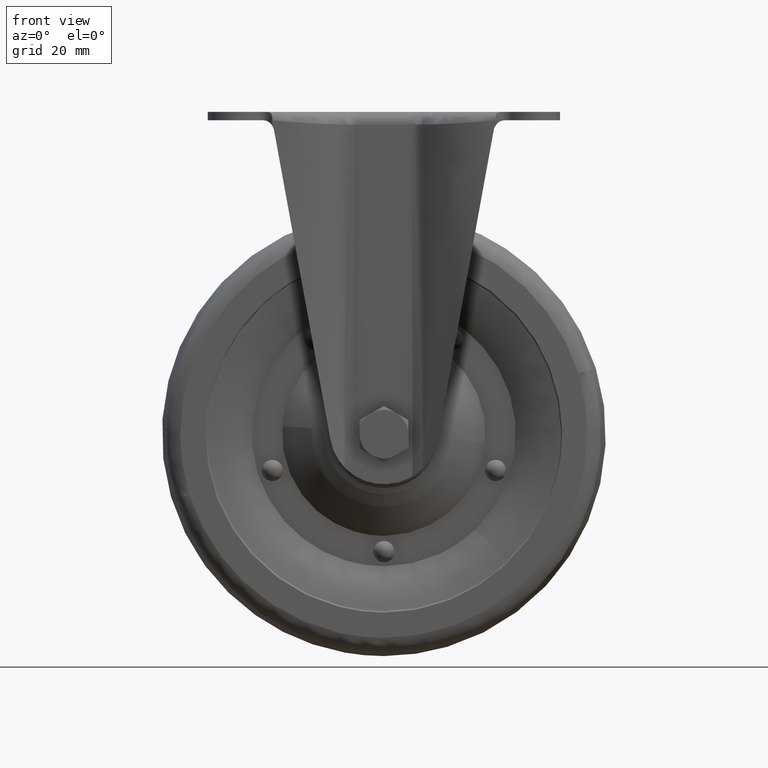
[diagram: clean part render]
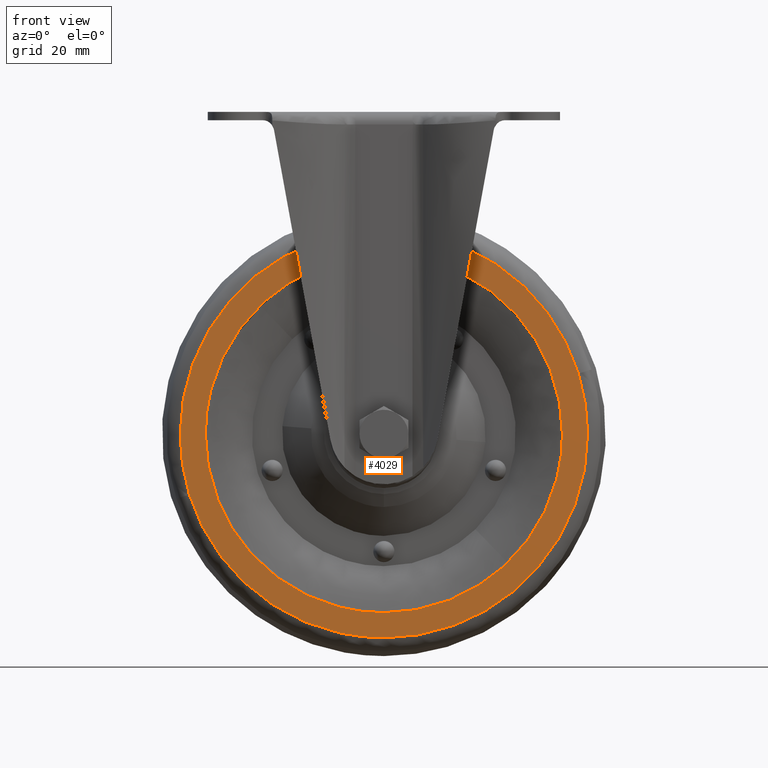
[diagram: same view with one face highlighted and labeled with its STEP entity id]
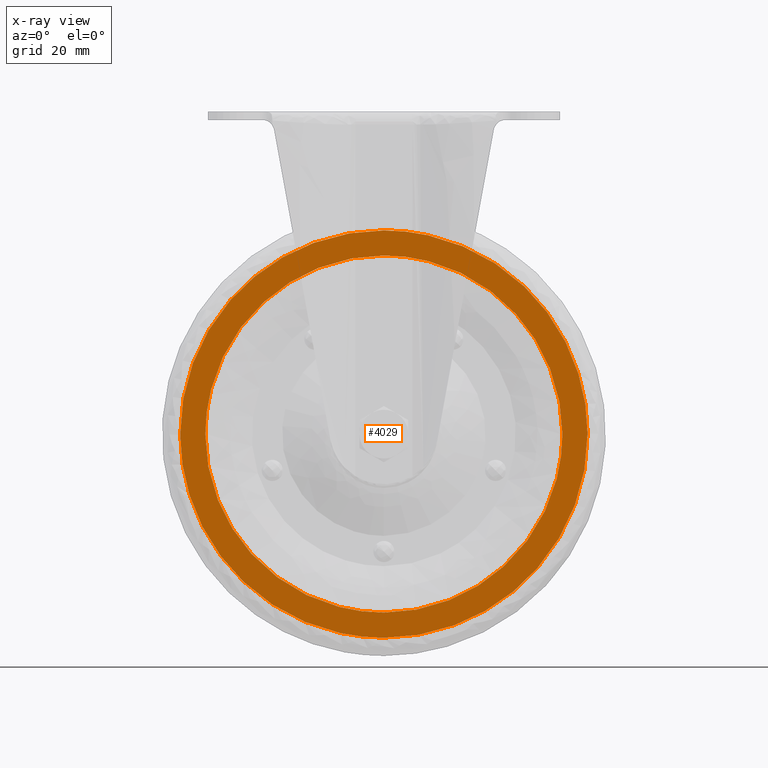
[diagram: x-ray of the same camera — body ghosted, the highlighted face saturated]
A machine part, front view. The second image highlights one B-rep face of the part: STEP entity #4029.
The next image is the same camera in x-ray: the body ghosted, the highlighted face saturated — about 0% of this face is hidden behind the body in this view.
In plain terms, the highlighted face is a freeform B-spline surface patch.
Its self-contained STEP definition (entity closure, byte-faithful):
#3826=CARTESIAN_POINT('',(67.908224761148844,-14.0,-91.374944518039996));
#3827=VERTEX_POINT('',#3826);
#3841=CARTESIAN_POINT('',(0.0,-14.0,-183.618176000000010));
#3842=VERTEX_POINT('',#3841);
#3843=CARTESIAN_POINT('',(0.0,-14.0,-183.618176000000010));
#3844=CARTESIAN_POINT('',(71.118176004348200,-13.999999999999998,-183.618175998647360));
#3845=CARTESIAN_POINT('',(71.118176010254558,-14.0,-112.499999996810000));
#3846=CARTESIAN_POINT('',(71.118176011152016,-14.000000000000004,-101.693596281719620));
#3847=CARTESIAN_POINT('',(67.908224761148844,-13.999999999999993,-91.374944518039996));
#3855=(BOUNDED_CURVE()B_SPLINE_CURVE(2,(#3843,#3844,#3845,#3846,#3847),.UNSPECIFIED.,.F.,.U.)B_SPLINE_CURVE_WITH_KNOTS((3,2,3),(0.0,0.250000000000000,0.300541362319608),.UNSPECIFIED.)CURVE()GEOMETRIC_REPRESENTATION_ITEM()RATIONAL_B_SPLINE_CURVE((1.0,0.707106781186547,1.0,0.940787110827972,0.905515822341018))REPRESENTATION_ITEM(''));
#3856=EDGE_CURVE('',#3842,#3827,#3855,.T.);
#3858=CARTESIAN_POINT('',(-67.908224761148858,-14.0,-133.625055481960000));
#3859=VERTEX_POINT('',#3858);
#3860=CARTESIAN_POINT('',(-67.908224761148844,-13.999999999999993,-133.625055481960000));
#3861=CARTESIAN_POINT('',(-52.356243409063232,-13.999999999999991,-183.618176001837380));
#3862=CARTESIAN_POINT('',(0.0,-14.0,-183.618176000000010));
#3870=(BOUNDED_CURVE()B_SPLINE_CURVE(2,(#3860,#3861,#3862),.UNSPECIFIED.,.F.,.U.)B_SPLINE_CURVE_WITH_KNOTS((3,3),(0.800541362319608,1.0),.UNSPECIFIED.)CURVE()GEOMETRIC_REPRESENTATION_ITEM()RATIONAL_B_SPLINE_CURVE((0.905515822341018,0.766319670358575,1.0))REPRESENTATION_ITEM(''));
#3871=EDGE_CURVE('',#3859,#3842,#3870,.T.);
#3921=CARTESIAN_POINT('',(0.0,-14.0,-41.381824000000002));
#3922=VERTEX_POINT('',#3921);
#3923=CARTESIAN_POINT('',(0.0,-14.0,-41.381824000000002));
#3924=CARTESIAN_POINT('',(-71.118176004348186,-13.999999999999996,-41.381824001352626));
#3925=CARTESIAN_POINT('',(-71.118176010254544,-14.0,-112.500000003190000));
#3926=CARTESIAN_POINT('',(-71.118176011152016,-13.999999999999991,-123.306403718280360));
#3927=CARTESIAN_POINT('',(-67.908224761148844,-13.999999999999993,-133.625055481960000));
#3935=(BOUNDED_CURVE()B_SPLINE_CURVE(2,(#3923,#3924,#3925,#3926,#3927),.UNSPECIFIED.,.F.,.U.)B_SPLINE_CURVE_WITH_KNOTS((3,2,3),(0.500000000000000,0.750000000000000,0.800541362319608),.UNSPECIFIED.)CURVE()GEOMETRIC_REPRESENTATION_ITEM()RATIONAL_B_SPLINE_CURVE((1.0,0.707106781186547,1.0,0.940787110827972,0.905515822341018))REPRESENTATION_ITEM(''));
#3936=EDGE_CURVE('',#3922,#3859,#3935,.T.);
#3938=CARTESIAN_POINT('',(67.908224761148844,-13.999999999999993,-91.374944518039996));
#3939=CARTESIAN_POINT('',(52.356243409063197,-14.000000000000004,-41.381823998162638));
#3940=CARTESIAN_POINT('',(0.0,-14.0,-41.381824000000002));
#3948=(BOUNDED_CURVE()B_SPLINE_CURVE(2,(#3938,#3939,#3940),.UNSPECIFIED.,.F.,.U.)B_SPLINE_CURVE_WITH_KNOTS((3,3),(0.300541362319608,0.500000000000000),.UNSPECIFIED.)CURVE()GEOMETRIC_REPRESENTATION_ITEM()RATIONAL_B_SPLINE_CURVE((0.905515822341018,0.766319670358576,1.0))REPRESENTATION_ITEM(''));
#3949=EDGE_CURVE('',#3827,#3922,#3948,.T.);
#3956=CARTESIAN_POINT('',(-78.218594760863169,-14.0,-34.277118493281641));
#3957=CARTESIAN_POINT('',(-78.218594760863169,-14.0,-190.722885321794710));
#3958=CARTESIAN_POINT('',(78.218589675188284,-14.0,-34.277118493281641));
#3959=CARTESIAN_POINT('',(78.218589675188284,-14.0,-190.722885321794710));
#3960=B_SPLINE_SURFACE_WITH_KNOTS('',1,1,((#3956,#3958),(#3957,#3959)),.UNSPECIFIED.,.F.,.F.,.U.,(2,2),(2,2),(0.0,156.445766828513000),(0.0,156.437184436051410),.UNSPECIFIED.);
#3961=ORIENTED_EDGE('',*,*,#3856,.T.);
#3962=ORIENTED_EDGE('',*,*,#3949,.T.);
#3963=ORIENTED_EDGE('',*,*,#3936,.T.);
#3964=ORIENTED_EDGE('',*,*,#3871,.T.);
#3965=EDGE_LOOP('',(#3961,#3962,#3963,#3964));
#3966=FACE_OUTER_BOUND('',#3965,.T.);
#3967=CARTESIAN_POINT('',(0.0,-14.0,-50.149999999999999));
#3968=VERTEX_POINT('',#3967);
#3969=CARTESIAN_POINT('',(-62.349999987765742,-14.0,-112.500000000000000));
#3970=VERTEX_POINT('',#3969);
#3971=CARTESIAN_POINT('',(0.0,-14.0,-50.149999999999999));
#3972=CARTESIAN_POINT('',(-62.349999993882861,-13.999999999999998,-50.150000000000013));
#3973=CARTESIAN_POINT('',(-62.349999987765742,-14.0,-112.500000000000000));
#3981=(BOUNDED_CURVE()B_SPLINE_CURVE(2,(#3971,#3972,#3973),.UNSPECIFIED.,.F.,.U.)B_SPLINE_CURVE_WITH_KNOTS((3,3),(0.500000000000000,0.750000000000000),.UNSPECIFIED.)CURVE()GEOMETRIC_REPRESENTATION_ITEM()RATIONAL_B_SPLINE_CURVE((1.0,0.707106781186548,1.0))REPRESENTATION_ITEM(''));
#3982=EDGE_CURVE('',#3968,#3970,#3981,.T.);
#3983=ORIENTED_EDGE('',*,*,#3982,.F.);
#3984=CARTESIAN_POINT('',(62.349999987765742,-14.0,-112.500000000000000));
#3985=VERTEX_POINT('',#3984);
#3986=CARTESIAN_POINT('',(62.349999987765742,-14.000000000000004,-112.500000000000030));
#3987=CARTESIAN_POINT('',(62.349999993882868,-13.999999999999998,-50.149999999999991));
#3988=CARTESIAN_POINT('',(0.0,-14.0,-50.149999999999999));
#3996=(BOUNDED_CURVE()B_SPLINE_CURVE(2,(#3986,#3987,#3988),.UNSPECIFIED.,.F.,.U.)B_SPLINE_CURVE_WITH_KNOTS((3,3),(0.250000000000000,0.500000000000000),.UNSPECIFIED.)CURVE()GEOMETRIC_REPRESENTATION_ITEM()RATIONAL_B_SPLINE_CURVE((1.000000000000000,0.707106781186547,1.0))REPRESENTATION_ITEM(''));
#3997=EDGE_CURVE('',#3985,#3968,#3996,.T.);
#3998=ORIENTED_EDGE('',*,*,#3997,.F.);
#3999=CARTESIAN_POINT('',(0.0,-14.0,-174.849999999999990));
#4000=VERTEX_POINT('',#3999);
#4001=CARTESIAN_POINT('',(0.0,-14.0,-174.849999999999990));
#4002=CARTESIAN_POINT('',(62.349999993882854,-13.999999999999998,-174.849999999999940));
#4003=CARTESIAN_POINT('',(62.349999987765742,-14.0,-112.500000000000000));
#4011=(BOUNDED_CURVE()B_SPLINE_CURVE(2,(#4001,#4002,#4003),.UNSPECIFIED.,.F.,.U.)B_SPLINE_CURVE_WITH_KNOTS((3,3),(0.0,0.250000000000000),.UNSPECIFIED.)CURVE()GEOMETRIC_REPRESENTATION_ITEM()RATIONAL_B_SPLINE_CURVE((1.0,0.707106781186548,1.0))REPRESENTATION_ITEM(''));
#4012=EDGE_CURVE('',#4000,#3985,#4011,.T.);
#4013=ORIENTED_EDGE('',*,*,#4012,.F.);
#4014=CARTESIAN_POINT('',(-62.349999987765742,-14.0,-112.500000000000000));
#4015=CARTESIAN_POINT('',(-62.349999993882861,-13.999999999999998,-174.849999999999940));
#4016=CARTESIAN_POINT('',(0.0,-14.0,-174.849999999999990));
#4024=(BOUNDED_CURVE()B_SPLINE_CURVE(2,(#4014,#4015,#4016),.UNSPECIFIED.,.F.,.U.)B_SPLINE_CURVE_WITH_KNOTS((3,3),(0.750000000000000,1.0),.UNSPECIFIED.)CURVE()GEOMETRIC_REPRESENTATION_ITEM()RATIONAL_B_SPLINE_CURVE((1.0,0.707106781186548,1.0))REPRESENTATION_ITEM(''));
#4025=EDGE_CURVE('',#3970,#4000,#4024,.T.);
#4026=ORIENTED_EDGE('',*,*,#4025,.F.);
#4027=EDGE_LOOP('',(#3983,#3998,#4013,#4026));
#4028=FACE_BOUND('',#4027,.T.);
#4029=ADVANCED_FACE('',(#3966,#4028),#3960,.T.);